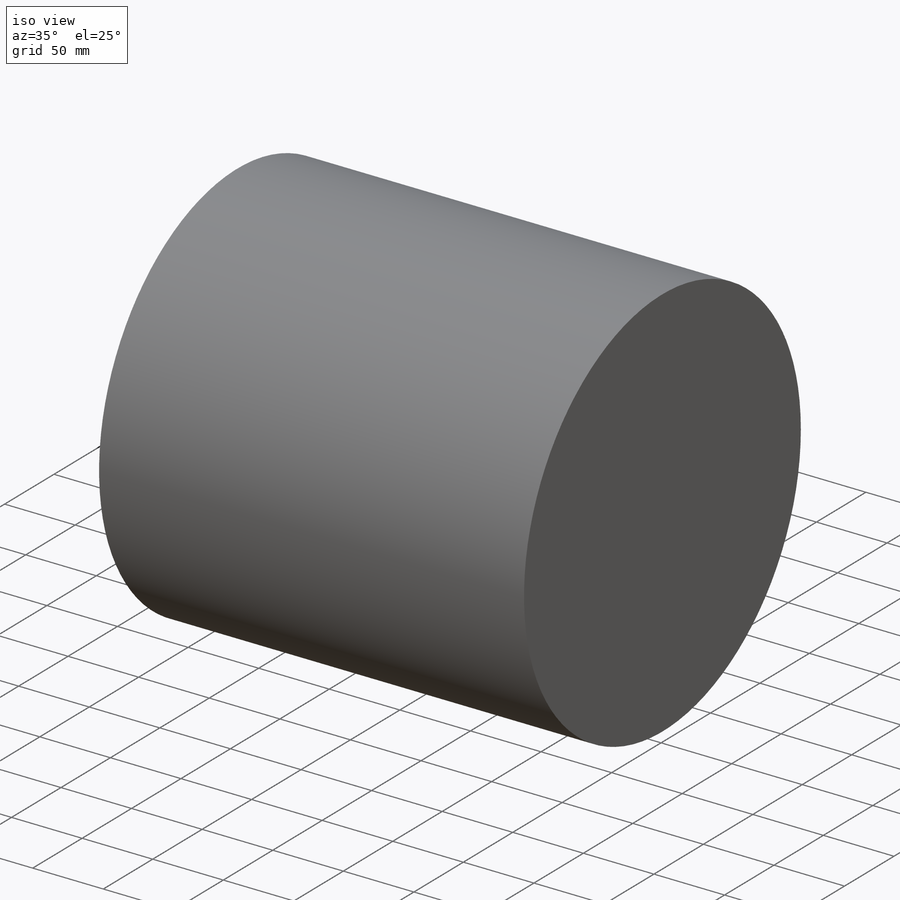
[diagram: iso view]
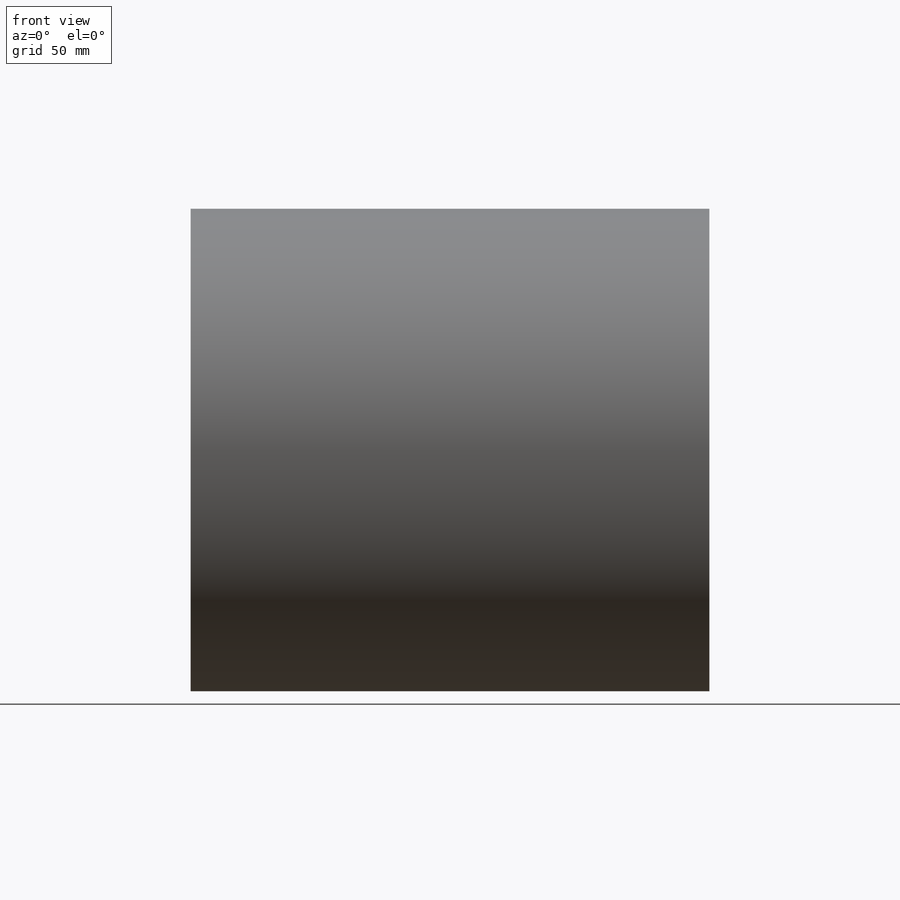
[diagram: front view]
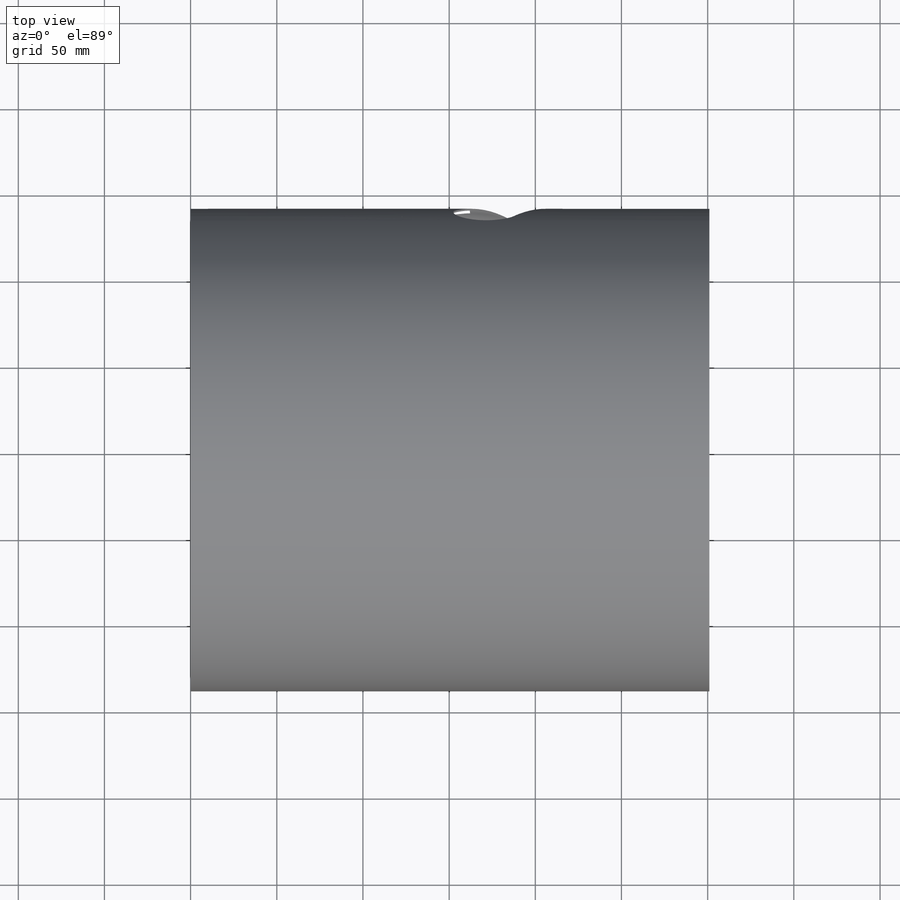
[diagram: top view]
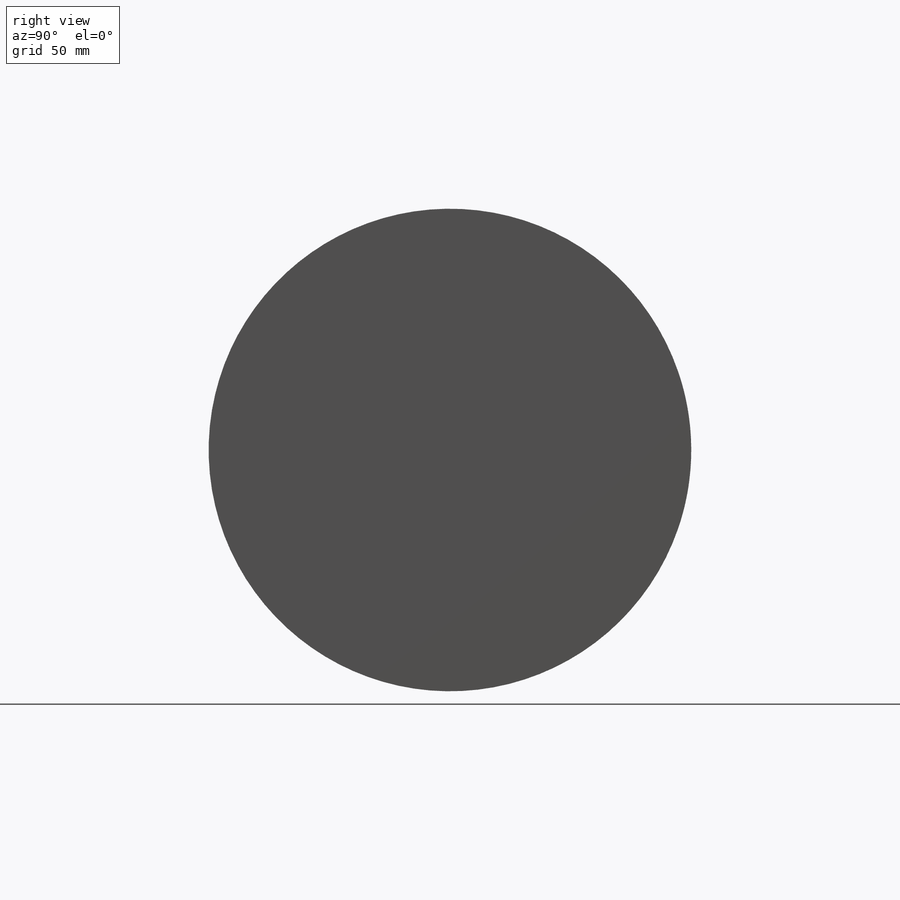
[diagram: right view]
SOLIDWORKS PART (.sldprt)
format: sldprt  version: not decoded by parser v0  size: 1,343,488 bytes
history: native  units: mm
features: sketch x8, plane x7, fillet x2, material x1, extrude x1 (+10 scaffold rows collapsed)
feature tree (29):
  scaffold x10  (default folders/planes/origin — collapsed)
  material  "1.8519 (31CrMoV9)"
  plane  "Vorne"
  plane  "Oben"
  plane  "Rechts"
  sketch  "Skizze2"  dims[Siebbolzendurchmesser=280.0mm]
  extrude  "Grundkörper"  Depth=1mm Auslenkung rechts=1mm Auslenkung links=300mm
  sketch  "3D-Skizze1"  dims[D1=301.0mm]
  plane  "Ebene4"
  sketch  "Skizze633"  dims[c1.D5=15.0mm c1.D8=15.0mm c1.D12=35.0mm c1.D15=20.0mm c1.D11=35.0mm c1.D1=188.0mm c1.D2=450.0mm c1.D3=100.0mm c1.D4=118.0mm c1.D6=180.0mm c1.D7=210.0mm c1.D9=30.0mm c1.D10=77.5mm c2.D11=5.0mm c2.D6=250.0mm c2.D13=28.0mm c2.D14=75.0mm c2.D16=5.0mm c2.D7=263.0mm c3.D6=210.0mm c3.D12=5.0mm c4.D6=250.0mm]
  sketch  "Skizze636"  dims[D6=19.0mm D1=36.0mm D2=26.0mm D3=62.0deg D4=5.0mm D5=10.0deg D7=72.0mm D8=100.0mm D9=31.0mm]
  plane  "Ebene9"
  plane  "Ebene11"  Offset=50mm
  sketch  "Skizze642"  dims[c1.D1=20.0mm c1.D2=50.0mm c1.D3=~73.619658mm c2.D3=20.0deg c2.D4=3.5mm c2.D5=2.0mm c3.D4=1.0mm c3.D5=2.0mm c4.D4=2.0mm c4.D5=2.5mm]
  plane  "Ebene10"  Offset=100mm
  sketch  "Skizze643"  dims[D1=22.0mm D2=40.0mm D3=2.0mm]
  fillet  "Verrundung26"  Radius=6mm
  sketch  "Skizze644"  dims[D1=0.0mm]
  sketch  "3D-Skizze2"  dims[D1=118.0mm D2=118.0mm D3=118.0mm D4=118.0mm]
  fillet  "Oberfläche-Trimmen1"  Radius=8mm
decode coverage: 11 of 11 modeling features carry decoded parameters
note: ~ marks probable driven/reference dimensions
note: suppression state not decoded; provenance and decode notes live in map.json
